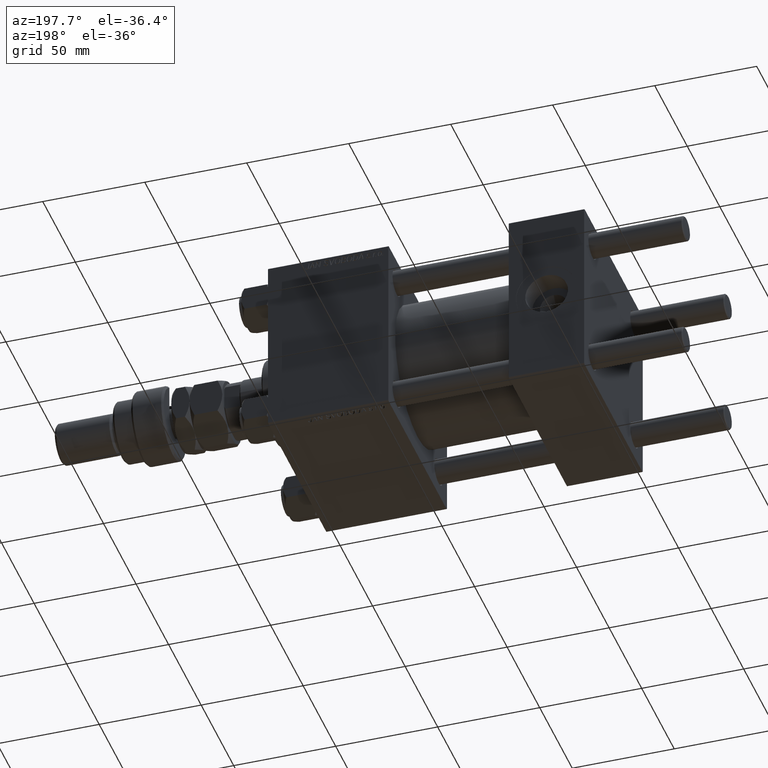
[diagram: clean part render]
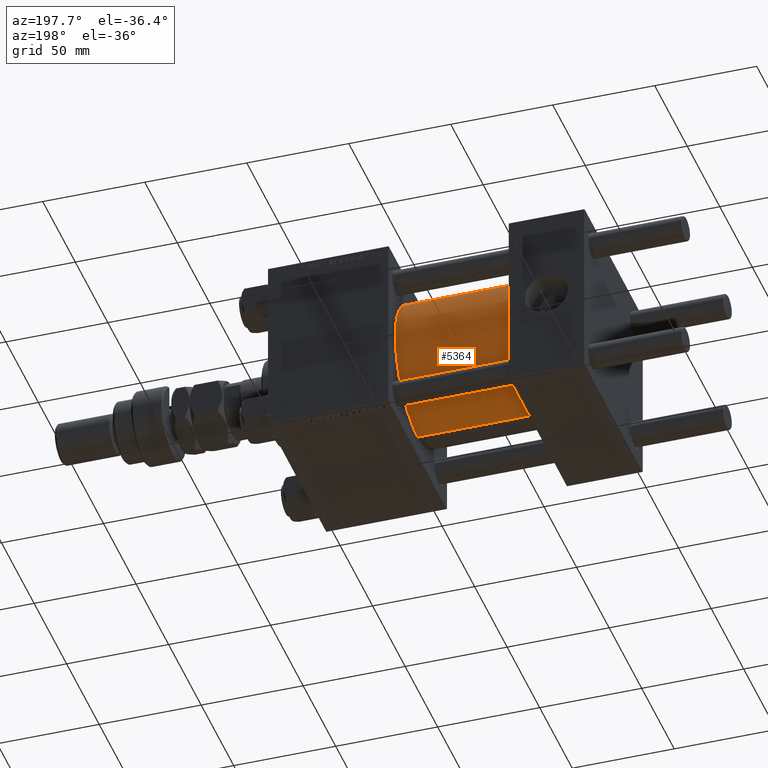
[diagram: same view with one face highlighted and labeled with its STEP entity id]
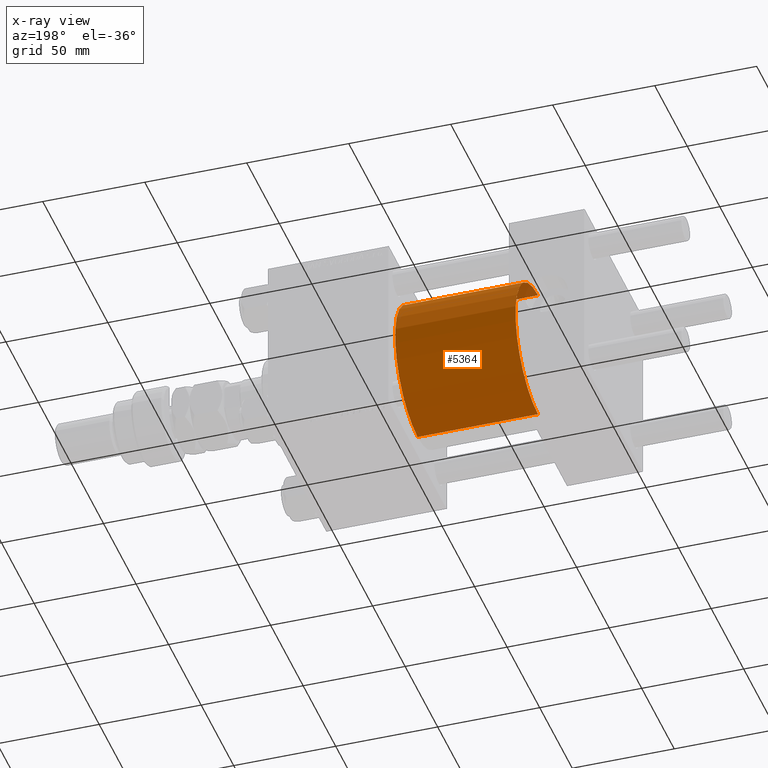
[diagram: x-ray of the same camera — body ghosted, the highlighted face saturated]
A machine part, auxiliary view. The second image highlights one B-rep face of the part: STEP entity #5364.
The next image is the same camera in x-ray: the body ghosted, the highlighted face saturated — about 1% of this face is hidden behind the body in this view.
In plain terms, the highlighted cylindrical surface (partial cylindrical patch) has radius 34.5 mm, axis along (-1, -0, -0).
Its self-contained STEP definition (entity closure, byte-faithful):
#550 = EDGE_CURVE ( 'NONE', #11038, #38653, #41790, .T. ) ;
#1404 = EDGE_CURVE ( 'NONE', #38653, #41230, #33904, .T. ) ;
#3567 = AXIS2_PLACEMENT_3D ( 'NONE', #50997, #30720, #47813 ) ;
#4494 = ORIENTED_EDGE ( 'NONE', *, *, #44530, .F. ) ;
#5318 = DIRECTION ( 'NONE',  ( -1.000000000000000000, -0.000000000000000000, -0.000000000000000000 ) ) ;
#5364 = ADVANCED_FACE ( 'NONE', ( #8462 ), #28679, .T. ) ;
#7259 = CARTESIAN_POINT ( 'NONE',  ( 37.00000000000000000, 0.000000000000000000, 34.49999999999999289 ) ) ;
#7358 = EDGE_CURVE ( 'NONE', #11038, #30928, #26465, .T. ) ;
#8462 = FACE_OUTER_BOUND ( 'NONE', #9846, .T. ) ;
#8760 = VECTOR ( 'NONE', #42755, 1000.000000000000000 ) ;
#9264 = AXIS2_PLACEMENT_3D ( 'NONE', #50266, #42786, #30771 ) ;
#9846 = EDGE_LOOP ( 'NONE', ( #24965, #15223, #49775, #4494 ) ) ;
#11038 = VERTEX_POINT ( 'NONE', #41199 ) ;
#15223 = ORIENTED_EDGE ( 'NONE', *, *, #550, .T. ) ;
#19043 = LINE ( 'NONE', #43823, #8760 ) ;
#19462 = VECTOR ( 'NONE', #5318, 1000.000000000000000 ) ;
#24965 = ORIENTED_EDGE ( 'NONE', *, *, #7358, .F. ) ;
#26465 = CIRCLE ( 'NONE', #3567, 34.49999999999999289 ) ;
#28679 = CYLINDRICAL_SURFACE ( 'NONE', #49429, 34.49999999999999289 ) ;
#30720 = DIRECTION ( 'NONE',  ( 1.000000000000000000, 0.000000000000000000, 0.000000000000000000 ) ) ;
#30771 = DIRECTION ( 'NONE',  ( 0.000000000000000000, 0.000000000000000000, 1.000000000000000000 ) ) ;
#30928 = VERTEX_POINT ( 'NONE', #45884 ) ;
#32930 = DIRECTION ( 'NONE',  ( -1.000000000000000000, -0.000000000000000000, -0.000000000000000000 ) ) ;
#33904 = CIRCLE ( 'NONE', #9264, 34.49999999999999289 ) ;
#38653 = VERTEX_POINT ( 'NONE', #42629 ) ;
#41199 = CARTESIAN_POINT ( 'NONE',  ( 96.00000000000000000, 4.225031457058367344E-15, -34.49999999999999289 ) ) ;
#41230 = VERTEX_POINT ( 'NONE', #7259 ) ;
#41472 = CARTESIAN_POINT ( 'NONE',  ( 96.00000000000000000, 0.000000000000000000, 0.000000000000000000 ) ) ;
#41790 = LINE ( 'NONE', #50052, #19462 ) ;
#42629 = CARTESIAN_POINT ( 'NONE',  ( 37.00000000000000000, 4.225031457058367344E-15, -34.49999999999999289 ) ) ;
#42755 = DIRECTION ( 'NONE',  ( -1.000000000000000000, -0.000000000000000000, -0.000000000000000000 ) ) ;
#42786 = DIRECTION ( 'NONE',  ( 1.000000000000000000, -0.000000000000000000, 0.000000000000000000 ) ) ;
#43823 = CARTESIAN_POINT ( 'NONE',  ( 96.00000000000000000, 0.000000000000000000, 34.49999999999999289 ) ) ;
#44530 = EDGE_CURVE ( 'NONE', #30928, #41230, #19043, .T. ) ;
#45198 = DIRECTION ( 'NONE',  ( 0.000000000000000000, 0.000000000000000000, 1.000000000000000000 ) ) ;
#45884 = CARTESIAN_POINT ( 'NONE',  ( 96.00000000000000000, 0.000000000000000000, 34.49999999999999289 ) ) ;
#47813 = DIRECTION ( 'NONE',  ( 0.000000000000000000, 0.000000000000000000, -1.000000000000000000 ) ) ;
#49429 = AXIS2_PLACEMENT_3D ( 'NONE', #41472, #32930, #45198 ) ;
#49775 = ORIENTED_EDGE ( 'NONE', *, *, #1404, .T. ) ;
#50052 = CARTESIAN_POINT ( 'NONE',  ( 96.00000000000000000, 4.225031457058367344E-15, -34.49999999999999289 ) ) ;
#50266 = CARTESIAN_POINT ( 'NONE',  ( 37.00000000000000000, 0.000000000000000000, 0.000000000000000000 ) ) ;
#50997 = CARTESIAN_POINT ( 'NONE',  ( 96.00000000000000000, 0.000000000000000000, 0.000000000000000000 ) ) ;